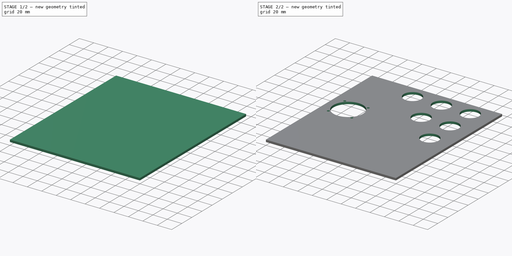
[diagram: build sequence overview — one tinted view per stage of 2, left to right]
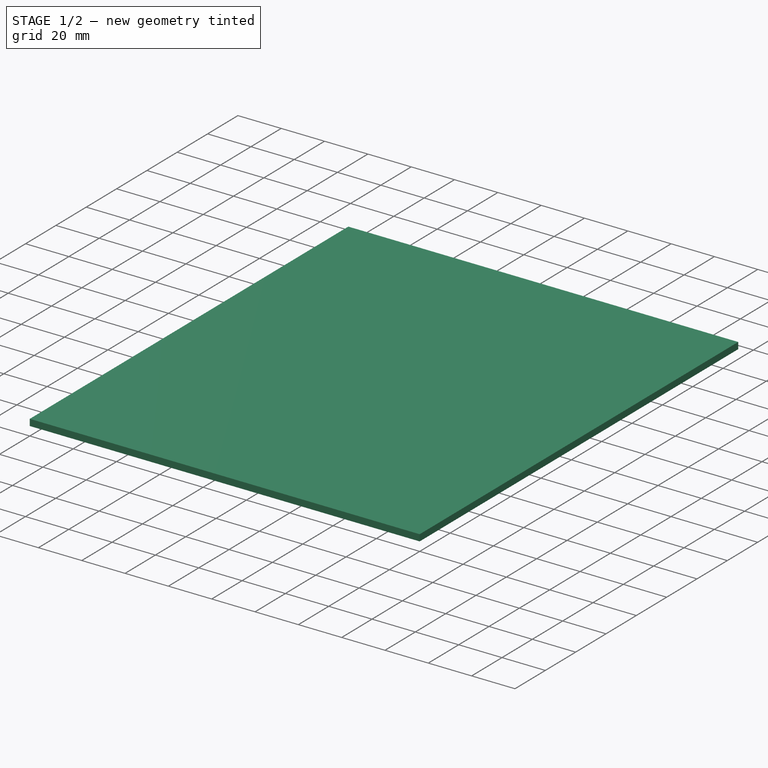
[diagram: stage 1 of 2 — iso view after this stage's code; geometry added in this stage tinted green]
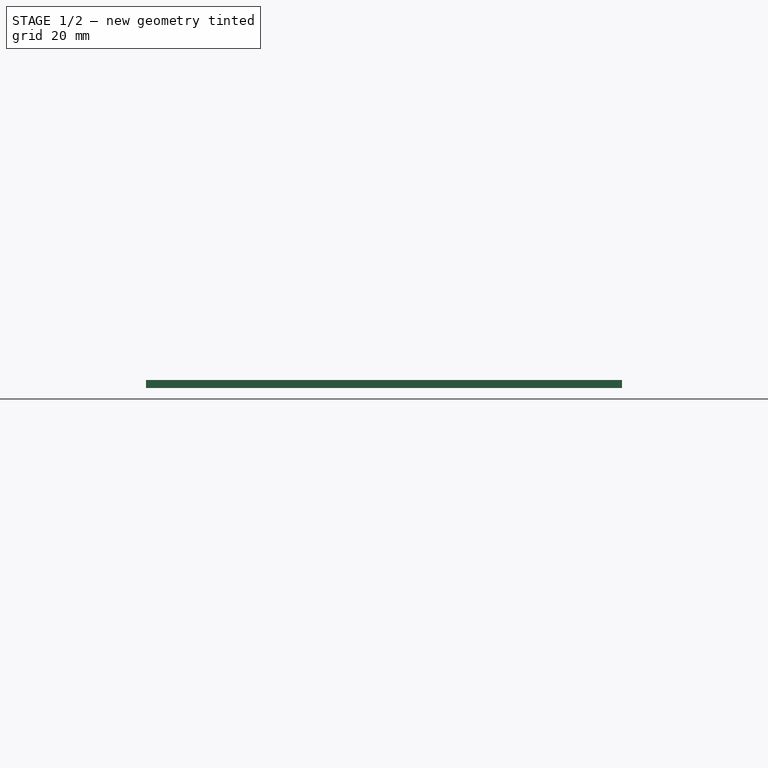
[diagram: stage 1 of 2 — front view after this stage's code; geometry added in this stage tinted green]
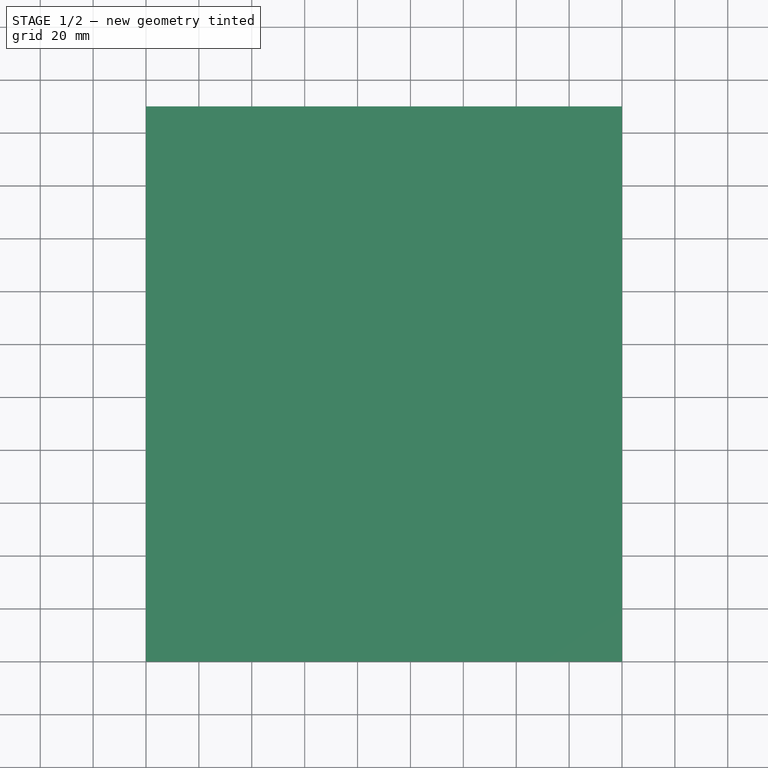
[diagram: stage 1 of 2 — top view after this stage's code; geometry added in this stage tinted green]
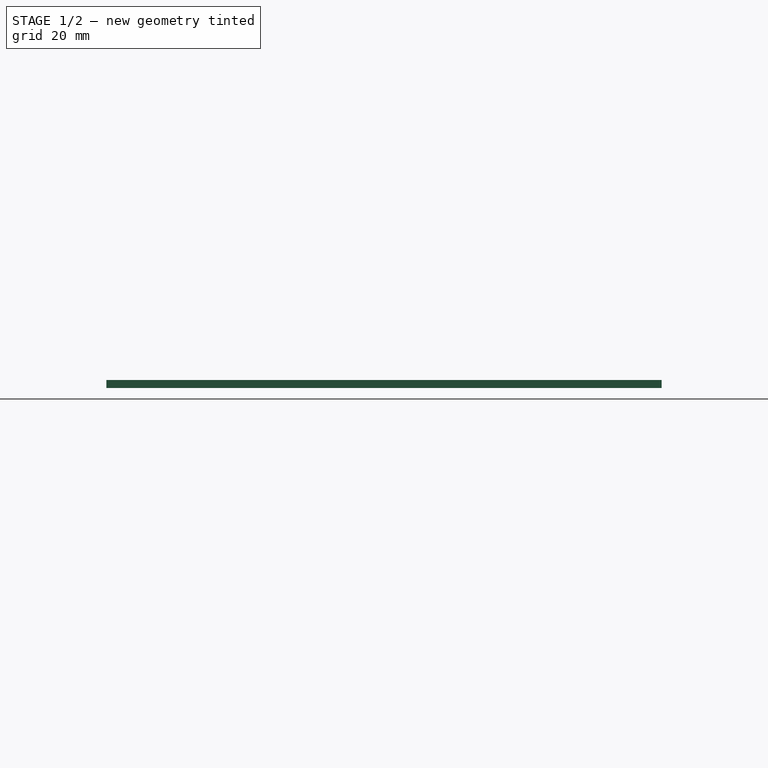
[diagram: stage 1 of 2 — right view after this stage's code; geometry added in this stage tinted green]
FCSTD DOCUMENT  (FreeCAD 0.20R26620 (Git))
Label: Panel1
License: All rights reserved
LicenseURL: http://en.wikipedia.org/wiki/All_rights_reserved
objects: Sketcher::SketchObject×2, PartDesign::Pad×1, PartDesign::Pocket×1, PartDesign::Body×1
note: 7 computed .brp shape members not serialized (recipe doc carries the construction recipe); baked Part::Feature solids carry a one-line shape summary decoded from their .brp

FEATURE [Sketcher::SketchObject] Sketch
  FullyConstrained = true
  MapMode = 5
  Support = -> [XY_Plane]
  sketch-geometry (4):
    g0: LineSegment StartX=0 StartY=0 StartZ=0 EndX=180 EndY=0 EndZ=0
    g1: LineSegment StartX=180 StartY=0 StartZ=0 EndX=180 EndY=210 EndZ=0
    g2: LineSegment StartX=180 StartY=210 StartZ=0 EndX=0 EndY=210 EndZ=0
    g3: LineSegment StartX=0 StartY=210 StartZ=0 EndX=0 EndY=0 EndZ=0
  constraints (11):
    c: Coincident(g0,g1)
    c: Coincident(g1,g2)
    c: Coincident(g2,g3)
    c: Coincident(g3,g0)
    c: Horizontal(g0)
    c: Horizontal(g2)
    c: Vertical(g1)
    c: Vertical(g3)
    c: Coincident(g0,g-1)
    c: Distance(g3) = 210
    c: Distance(g2) = 180
FEATURE [PartDesign::Pad] Pad
  Direction = (0,0,1)
  Length = 3
  Length2 = 100
  Profile = -> Sketch
  ReferenceAxis = -> Sketch [N_Axis]
  Type = 0
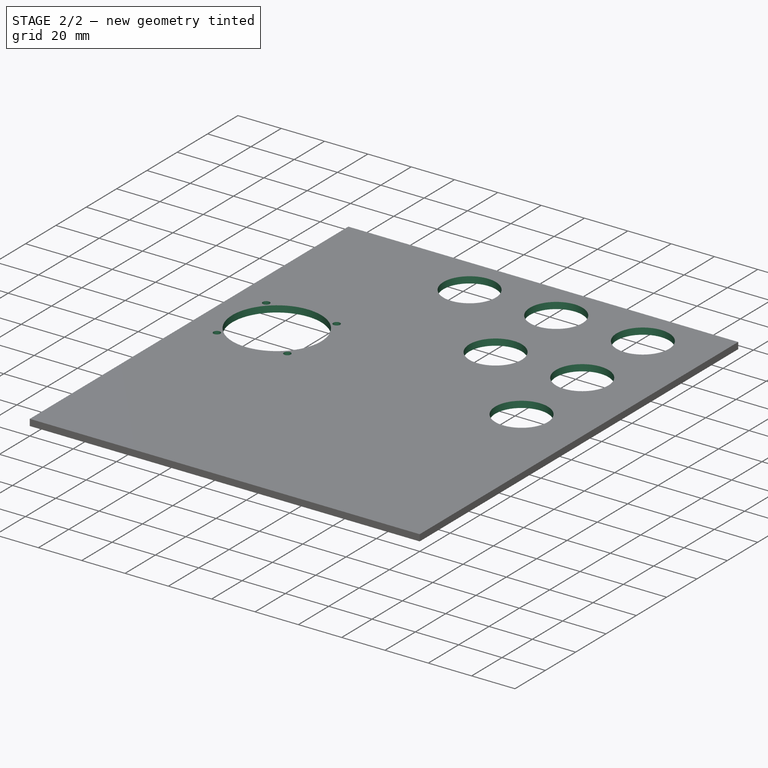
[diagram: stage 2 of 2 — iso view after this stage's code; geometry added in this stage tinted green]
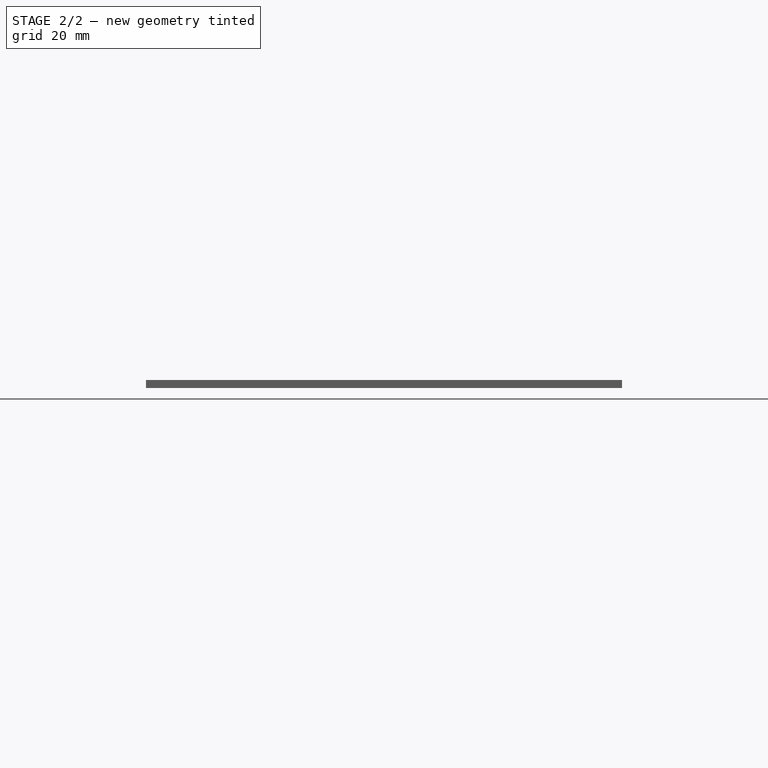
[diagram: stage 2 of 2 — front view after this stage's code; geometry added in this stage tinted green]
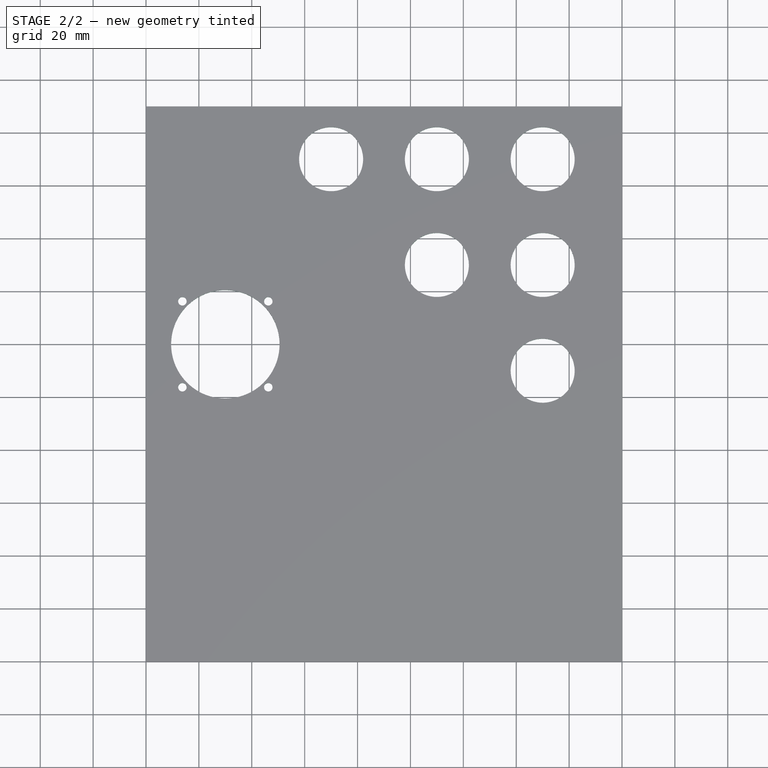
[diagram: stage 2 of 2 — top view after this stage's code; geometry added in this stage tinted green]
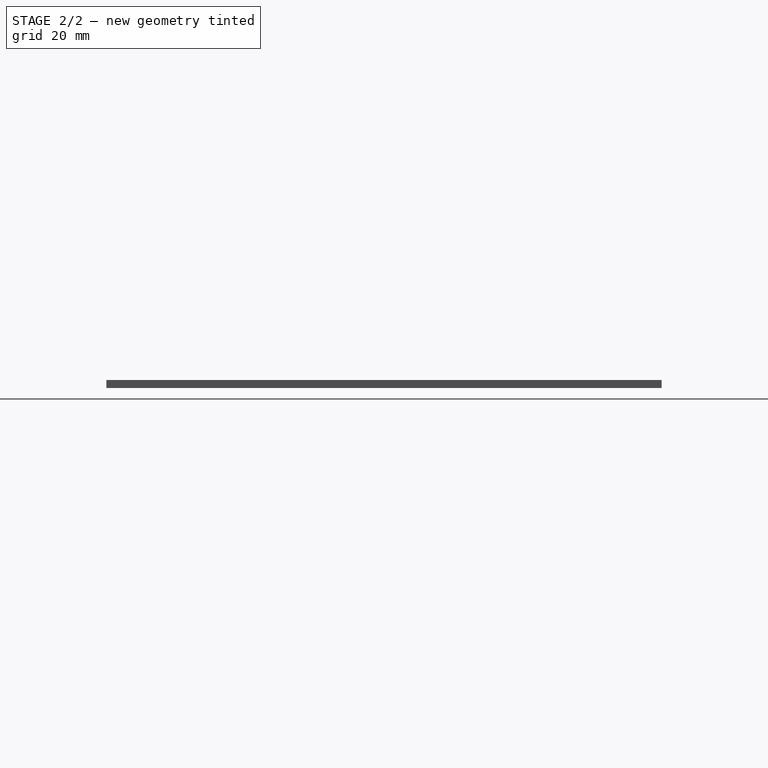
[diagram: stage 2 of 2 — right view after this stage's code; geometry added in this stage tinted green]
FEATURE [Sketcher::SketchObject] Sketch001
  ExternalGeometry = -> [Pad]
  FullyConstrained = false
  MapMode = 5
  Placement = pos=(0,0,3) rot=(0,0,1;0rad)
  Support = -> [Pad]
  sketch-geometry (17):
    g0: Circle CenterX=30 CenterY=120 CenterZ=0 NormalX=0 NormalY=0 NormalZ=1 AngleXU=0 Radius=20.5
    g1: LineSegment StartX=0 StartY=136.25 StartZ=0 EndX=64.1211 EndY=136.25 EndZ=0
    g2: LineSegment StartX=0 StartY=103.75 StartZ=0 EndX=71.2592 EndY=103.75 EndZ=0
    g3: Circle CenterX=13.75 CenterY=136.25 CenterZ=0 NormalX=0 NormalY=0 NormalZ=1 AngleXU=0 Radius=1.6
    g4: Circle CenterX=46.25 CenterY=136.25 CenterZ=0 NormalX=0 NormalY=0 NormalZ=1 AngleXU=0 Radius=1.6
    g5: Circle CenterX=13.75 CenterY=103.75 CenterZ=0 NormalX=0 NormalY=0 NormalZ=1 AngleXU=0 Radius=1.6
    g6: Circle CenterX=46.25 CenterY=103.75 CenterZ=0 NormalX=0 NormalY=0 NormalZ=1 AngleXU=0 Radius=1.6
    g7: LineSegment StartX=0 StartY=120 StartZ=0 EndX=84.7171 EndY=120 EndZ=0
    g8: LineSegment StartX=30 StartY=145.773 StartZ=0 EndX=30 EndY=92.79 EndZ=0
    g9: LineSegment StartX=70 StartY=190 StartZ=0 EndX=150 EndY=190 EndZ=0
    g10: LineSegment StartX=110 StartY=150 StartZ=0 EndX=150 EndY=150 EndZ=0
    g11: Circle CenterX=70 CenterY=190 CenterZ=0 NormalX=0 NormalY=0 NormalZ=1 AngleXU=0 Radius=12.1
    g12: Circle CenterX=110 CenterY=190 CenterZ=0 NormalX=0 NormalY=0 NormalZ=1 AngleXU=0 Radius=12.1
    g13: Circle CenterX=150 CenterY=190 CenterZ=0 NormalX=0 NormalY=0 NormalZ=1 AngleXU=0 Radius=12.1
    g14: Circle CenterX=110 CenterY=150 CenterZ=0 NormalX=0 NormalY=0 NormalZ=1 AngleXU=0 Radius=12.1
    g15: Circle CenterX=150 CenterY=150 CenterZ=0 NormalX=0 NormalY=0 NormalZ=1 AngleXU=0 Radius=12.1
    g16: Circle CenterX=150 CenterY=110 CenterZ=0 NormalX=0 NormalY=0 NormalZ=1 AngleXU=0 Radius=12.1
  constraints (44):
    c: Distance(g0,g-2) = 30
    c: Distance(g0,g-1) = 120
    c: Diameter(g0) = 41
    c: Horizontal(g1)
    c: Horizontal(g2)
    c: PointOnObject(g3,g1)
    c: PointOnObject(g4,g1)
    c: PointOnObject(g5,g2)
    c: Diameter(g3) = 3.2
    c: Diameter(g4) = 3.2
    c: Diameter(g5) = 3.2
    c: Diameter(g6) = 3.2
    c: Distance(g5,g6) = 32.5
    c: Distance(g3,g4) = 32.5
    c: Horizontal(g7)
    c: PointOnObject(g7,g-2)
    c: PointOnObject(g0,g7)
    c: PointOnObject(g1,g-2)
    c: Distance(g1,g2) = 32.5
    c: Symmetric(g1,g2,g7)
    c: PointOnObject(g0,g8)
    c: Symmetric(g3,g4,g8)
    c: Symmetric(g5,g6,g8)
    c: Horizontal(g9)
    c: Horizontal(g10)
    c: Diameter(g11) = 24.2
    c: Diameter(g12) = 24.2
    c: Diameter(g13) = 24.2
    c: Coincident(g13,g9)
    c: Coincident(g9,g11)
    c: Symmetric(g11,g13,g12)
    c: Coincident(g14,g10)
    c: Coincident(g15,g10)
    c: Diameter(g14) = 24.2
    c: Diameter(g15) = 24.2
    c: Diameter(g16) = 24.2
    c: Vertical(g13,g15)
    c: Vertical(g14,g12)
    c: Vertical(g16,g15)
    c: Distance(g13,g15) = 40
    c: Distance(g15,g16) = 40
    c: Distance(g12,g13) = 40
    c: Distance(g11,g-2) = 70
    c: Distance(g11,g-3) = 20
FEATURE [PartDesign::Pocket] Pocket
  BaseFeature = -> Pad
  Direction = (0,0,-1)
  Length = 5
  Length2 = 100
  Profile = -> Sketch001
  Type = 2
FEATURE [PartDesign::Body] Body
  Group = -> [Sketch,Pad,Sketch001,Pocket]
  Origin = -> Origin
  Tip = -> Pocket
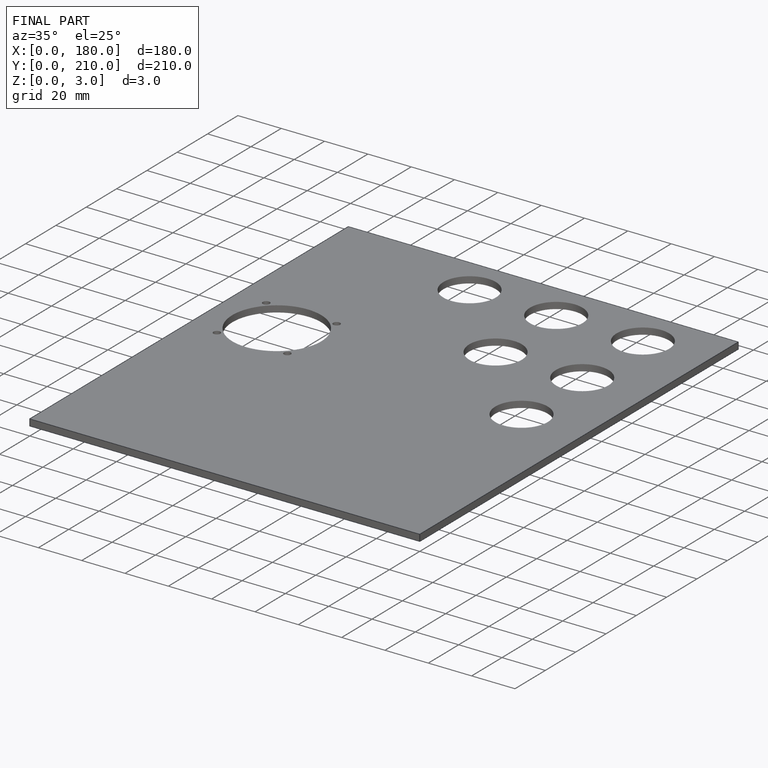
[diagram: finished part — iso view with bounding-box wireframe]
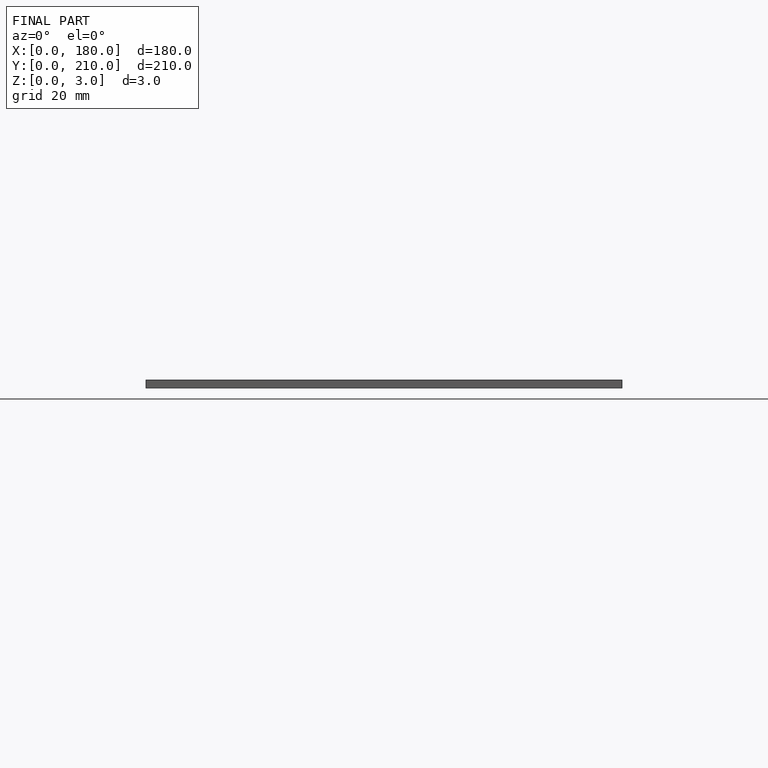
[diagram: finished part — front view with bounding-box wireframe]
